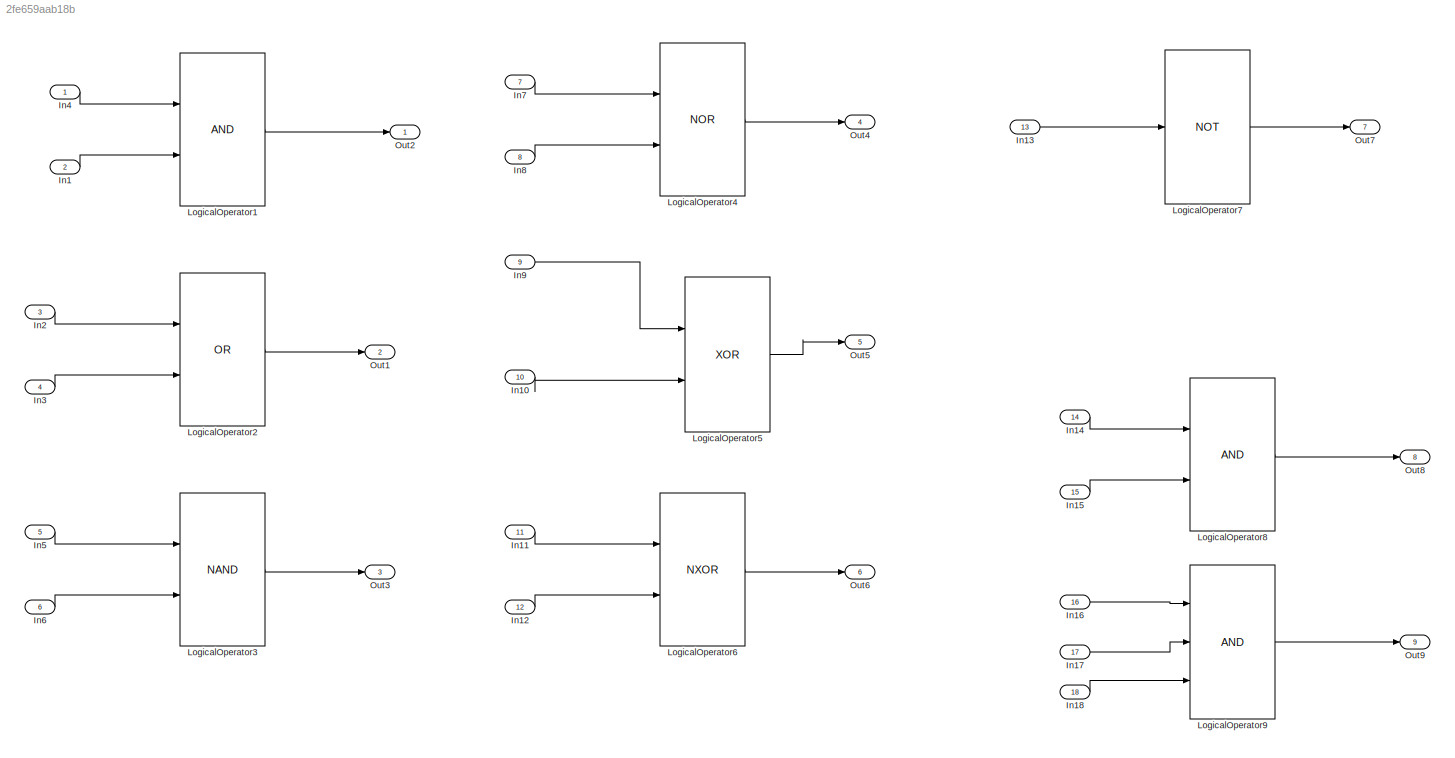
MODEL slx_2fe659aab18b
KIND model
CONFIG AbsTol = auto
CONFIG EnableMultiTasking = on
CONFIG FixedStep = 0.200000
CONFIG MaxStep = auto
CONFIG MinStep = auto
CONFIG RelTol = 1e-3
CONFIG SampleTimeConstraint = Unconstrained
CONFIG Solver = FixedStepDiscrete
CONFIG SolverName = FixedStepDiscrete
CONFIG StartTime = 0.0
CONFIG StopTime = 10.0
WORKSPACE source: MAT-file member
WORKSPACE already_pp = 0
BLOCK [Inport] In1
  IconDisplay = Port number
  OutDataTypeStr = int8
  Port = 2
  PortDimensions = 3
BLOCK [Inport] In10
  IconDisplay = Port number
  OutDataTypeStr = double
  Port = 10
  PortDimensions = 3
BLOCK [Inport] In11
  IconDisplay = Port number
  OutDataTypeStr = double
  Port = 11
  PortDimensions = 3
BLOCK [Inport] In12
  IconDisplay = Port number
  OutDataTypeStr = double
  Port = 12
  PortDimensions = 3
BLOCK [Inport] In13
  IconDisplay = Port number
  OutDataTypeStr = double
  Port = 13
  PortDimensions = 3
BLOCK [Inport] In14
  IconDisplay = Port number
  OutDataTypeStr = double
  Port = 14
  PortDimensions = 1
BLOCK [Inport] In15
  IconDisplay = Port number
  OutDataTypeStr = int8
  Port = 15
  PortDimensions = 3
BLOCK [Inport] In16
  IconDisplay = Port number
  OutDataTypeStr = double
  Port = 16
  PortDimensions = 1
BLOCK [Inport] In17
  IconDisplay = Port number
  OutDataTypeStr = int8
  Port = 17
  PortDimensions = 3
BLOCK [Inport] In18
  IconDisplay = Port number
  OutDataTypeStr = int8
  Port = 18
  PortDimensions = 3
BLOCK [Inport] In2
  IconDisplay = Port number
  OutDataTypeStr = double
  Port = 3
  PortDimensions = 3
BLOCK [Inport] In3
  IconDisplay = Port number
  OutDataTypeStr = double
  Port = 4
  PortDimensions = 3
BLOCK [Inport] In4
  IconDisplay = Port number
  OutDataTypeStr = double
  PortDimensions = 3
BLOCK [Inport] In5
  IconDisplay = Port number
  OutDataTypeStr = double
  Port = 5
  PortDimensions = 3
BLOCK [Inport] In6
  IconDisplay = Port number
  OutDataTypeStr = double
  Port = 6
  PortDimensions = 3
BLOCK [Inport] In7
  IconDisplay = Port number
  OutDataTypeStr = double
  Port = 7
  PortDimensions = 3
BLOCK [Inport] In8
  IconDisplay = Port number
  OutDataTypeStr = double
  Port = 8
  PortDimensions = 3
BLOCK [Inport] In9
  IconDisplay = Port number
  OutDataTypeStr = double
  Port = 9
  PortDimensions = 3
BLOCK [Logic] LogicalOperator1
  AllPortsSameDT = off
  OutDataTypeStr = boolean
  Ports = [2, 1]
BLOCK [Logic] LogicalOperator2
  AllPortsSameDT = off
  Operator = OR
  OutDataTypeStr = boolean
  Ports = [2, 1]
BLOCK [Logic] LogicalOperator3
  AllPortsSameDT = off
  Operator = NAND
  OutDataTypeStr = boolean
  Ports = [2, 1]
BLOCK [Logic] LogicalOperator4
  AllPortsSameDT = off
  Operator = NOR
  OutDataTypeStr = boolean
  Ports = [2, 1]
BLOCK [Logic] LogicalOperator5
  AllPortsSameDT = off
  Operator = XOR
  OutDataTypeStr = boolean
  Ports = [2, 1]
BLOCK [Logic] LogicalOperator6
  AllPortsSameDT = off
  Operator = NXOR
  OutDataTypeStr = boolean
  Ports = [2, 1]
BLOCK [Logic] LogicalOperator7
  AllPortsSameDT = off
  Operator = NOT
  OutDataTypeStr = boolean
  Ports = [1, 1]
BLOCK [Logic] LogicalOperator8
  AllPortsSameDT = off
  OutDataTypeStr = boolean
  Ports = [2, 1]
BLOCK [Logic] LogicalOperator9
  AllPortsSameDT = off
  Inputs = 3
  OutDataTypeStr = boolean
  Ports = [3, 1]
BLOCK [Outport] Out1
  IconDisplay = Port number
  Port = 2
BLOCK [Outport] Out2
  IconDisplay = Port number
BLOCK [Outport] Out3
  IconDisplay = Port number
  Port = 3
BLOCK [Outport] Out4
  IconDisplay = Port number
  Port = 4
BLOCK [Outport] Out5
  IconDisplay = Port number
  Port = 5
BLOCK [Outport] Out6
  IconDisplay = Port number
  Port = 6
BLOCK [Outport] Out7
  IconDisplay = Port number
  Port = 7
BLOCK [Outport] Out8
  IconDisplay = Port number
  Port = 8
BLOCK [Outport] Out9
  IconDisplay = Port number
  Port = 9
LINE In10:1 -> LogicalOperator5:2
LINE In11:1 -> LogicalOperator6:1
LINE In12:1 -> LogicalOperator6:2
LINE In13:1 -> LogicalOperator7:1
LINE In14:1 -> LogicalOperator8:1
LINE In15:1 -> LogicalOperator8:2
LINE In16:1 -> LogicalOperator9:1
LINE In17:1 -> LogicalOperator9:2
LINE In18:1 -> LogicalOperator9:3
LINE In1:1 -> LogicalOperator1:2
LINE In2:1 -> LogicalOperator2:1
LINE In3:1 -> LogicalOperator2:2
LINE In4:1 -> LogicalOperator1:1
LINE In5:1 -> LogicalOperator3:1
LINE In6:1 -> LogicalOperator3:2
LINE In7:1 -> LogicalOperator4:1
LINE In8:1 -> LogicalOperator4:2
LINE In9:1 -> LogicalOperator5:1
LINE LogicalOperator1:1 -> Out2:1
LINE LogicalOperator2:1 -> Out1:1
LINE LogicalOperator3:1 -> Out3:1
LINE LogicalOperator4:1 -> Out4:1
LINE LogicalOperator5:1 -> Out5:1
LINE LogicalOperator6:1 -> Out6:1
LINE LogicalOperator7:1 -> Out7:1
LINE LogicalOperator8:1 -> Out8:1
LINE LogicalOperator9:1 -> Out9:1
